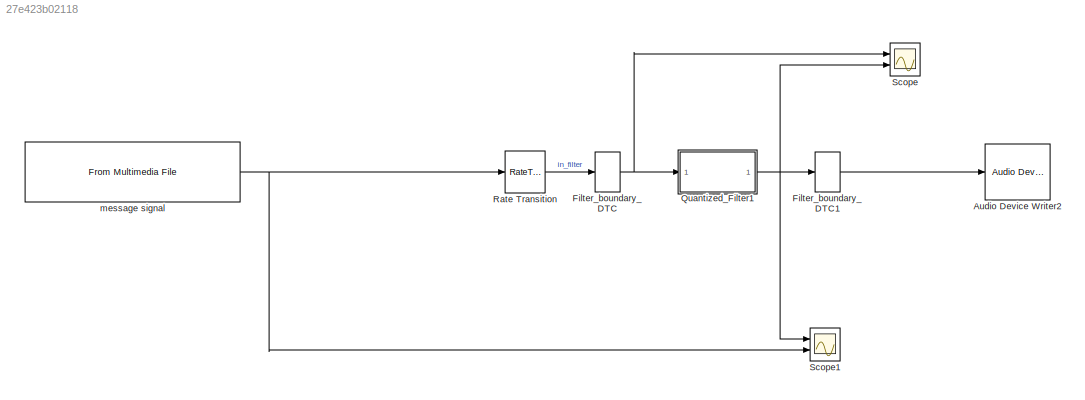
MODEL slx_27e423b02118
KIND model
CONFIG AbsTol = auto
CONFIG EnableMultiTasking = off
CONFIG FixedStep = auto
CONFIG MaxStep = auto
CONFIG MinStep = auto
CONFIG RelTol = 1e-3
CONFIG SampleTimeConstraint = Unconstrained
CONFIG SolverName = VariableStepAuto
CONFIG StartTime = 0.0
CONFIG StopTime = 10.0
BLOCK [Reference] Audio Device Writer2  REF=dspsnks4/Audio Device
Writer
  Ports = [1]
  SourceBlock = dspsnks4/Audio Device\nWriter
  SourceProductBaseCode = DS
  SourceType = Audio Device Writer
BLOCK [DataTypeConversion] Filter_boundary_DTC
  OutDataTypeStr = fixdt(1,12,11)
BLOCK [DataTypeConversion] Filter_boundary_DTC1
  OutDataTypeStr = double
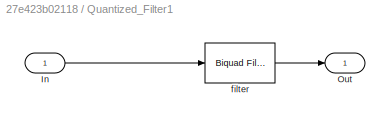
BLOCK [SubSystem] Quantized_Filter1
  Ports = [1, 1]
  RequestExecContextInheritance = off
  Tag = BlockMethodSubSystem
BLOCK [Inport] Quantized_Filter1/In
BLOCK [Outport] Quantized_Filter1/Out
BLOCK [Reference] Quantized_Filter1/filter  REF=dsparch4/Biquad Filter
  Ports = [1, 1]
  SourceBlock = dsparch4/Biquad Filter
  SourceProductBaseCode = DS
  SourceType = Biquad Filter
  UserDataPersistent = on
BLOCK [RateTransition] Rate Transition
  Deterministic = off
  OutPortSampleTime = 1/8000
BLOCK [Scope] Scope
  Floating = off
  NumInputPorts = 2
  Ports = [2]
  ScopeSpecificationString = Simulink.scopes.TimeScopeBlockCfg('CurrentConfiguration', extmgr.ConfigurationSet(extmgr.Configuration('Core','General UI',true),extmgr.Configuration('Core','Source UI',true),extmgr.Configuration('Sources','WiredSimulink',true),extmgr.Configuration('Visuals','Time Domain',true,'SerializedDisplays',{struct('MinYLimReal','-1.1344','MaxYLimReal','1.11292','YLabelReal','','MinYLimMag','0.00000','MaxYL...<+2019ch>
BLOCK [Scope] Scope1
  Floating = off
  NumInputPorts = 2
  Ports = [2]
  ScopeSpecificationString = Simulink.scopes.TimeScopeBlockCfg('CurrentConfiguration', extmgr.ConfigurationSet(extmgr.Configuration('Core','General UI',true),extmgr.Configuration('Core','Source UI',true),extmgr.Configuration('Sources','WiredSimulink',true,'DataLoggingVariableName','ScopeData1'),extmgr.Configuration('Visuals','Time Domain',true,'SerializedDisplays',{struct('MinYLimReal','-1.25','MaxYLimReal','1.25','YLabelReal...<+2046ch>
BLOCK [Reference] message signal  REF=dspvision/From Multimedia File
  Ports = [0, 1]
  SourceBlock = dspvision/From Multimedia File
  SourceProductBaseCode = DS,HW,VP
  SourceType = From Multimedia File
LINE Filter_boundary_DTC1:1 -> Audio Device Writer2:1
NET Filter_boundary_DTC:1 -> Quantized_Filter1:1, Scope:1
LINE Quantized_Filter1/In:1 -> Quantized_Filter1/filter:1
LINE Quantized_Filter1/filter:1 -> Quantized_Filter1/Out:1
NET Quantized_Filter1:1 -> Filter_boundary_DTC1:1, Scope1:1, Scope:2
LINE Rate Transition:1 -> Filter_boundary_DTC:1
NET message signal:1 -> Rate Transition:1, Scope1:2
note: NET lines group one-source signal fan-out (src -> all destinations, sorted); 1:1 wires keep LINE
